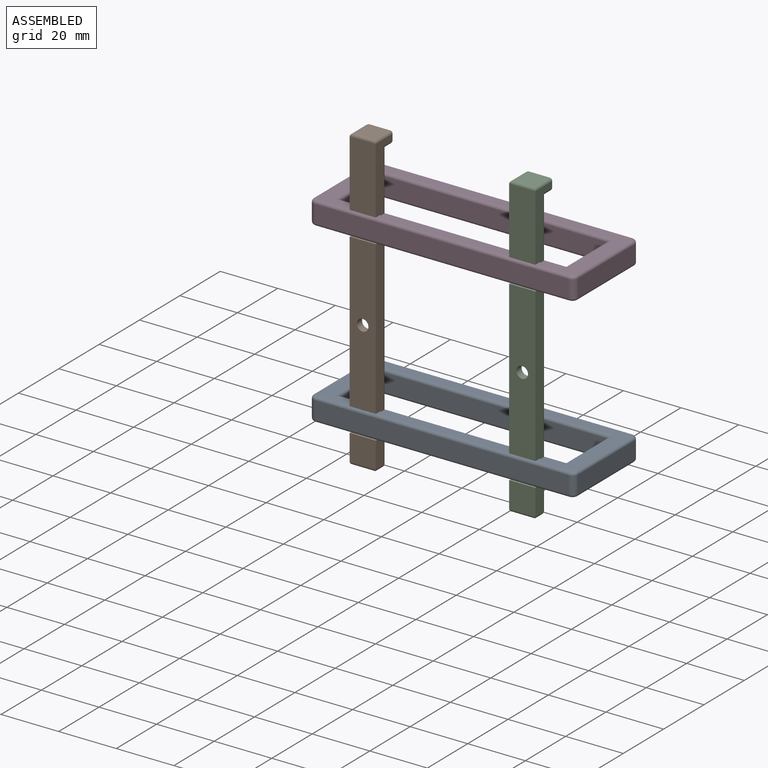
[diagram: assembled view]
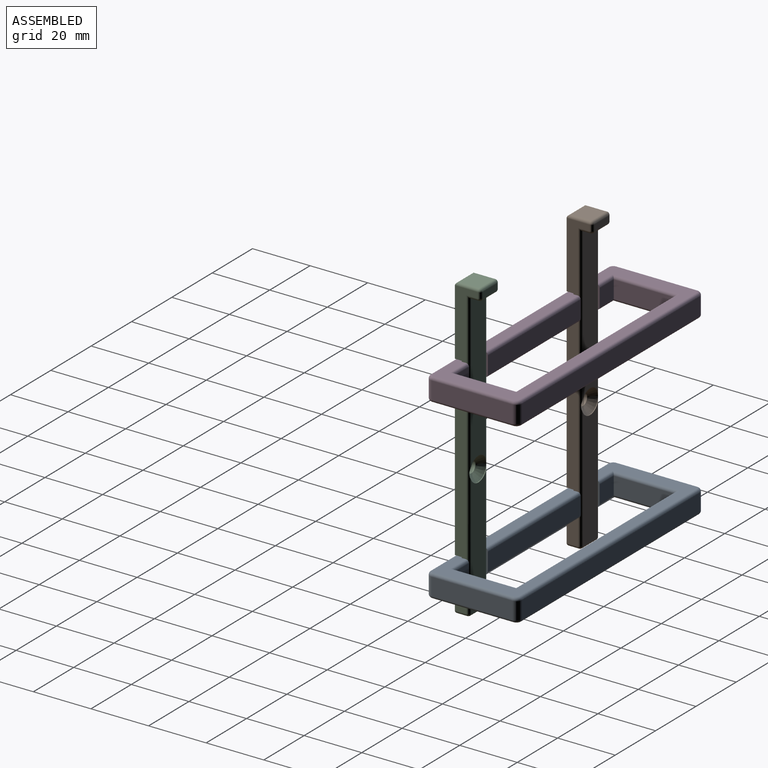
[diagram: assembled view, second angle]
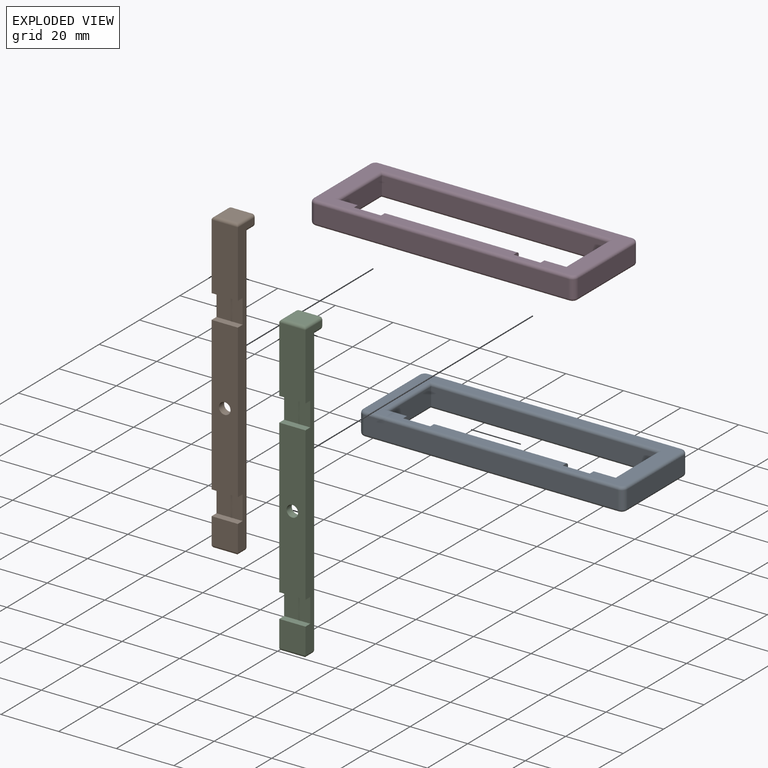
[diagram: exploded view]
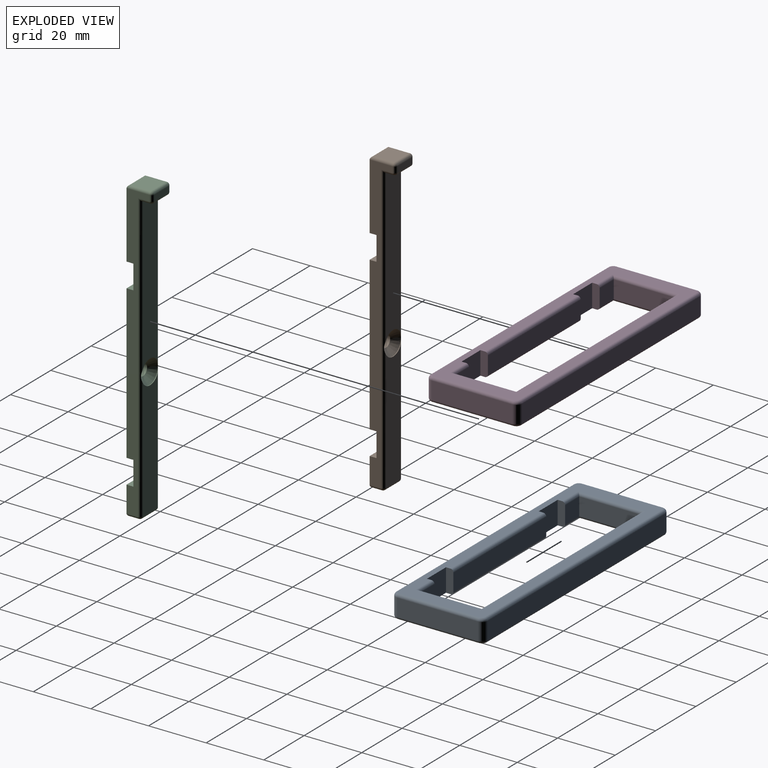
[diagram: exploded view, second angle]
ASSEMBLY  parts=4 mates=3
PART A: 50 faces, bbox 92.3x32.3x8 mm
  f0: plane 28x6mm, normal (1,0,0), area 168mm2, adj f1,f19,f33,f41
  f1: cylinder r=2mm len=6mm, axis (0,0,-1), area 18.8mm2, adj f0,f2,f31,f39
  f2: plane 88x6mm, normal (0,1,0), area 528mm2, adj f1,f3,f30,f38
  f3: cylinder r=2mm len=6mm, axis (0,0,-1), area 18.8mm2, adj f2,f4,f32,f40
  f4: plane 28x6mm, normal (-1,0,0), area 168mm2, adj f3,f5,f34,f42
  f5: cylinder r=2mm len=6mm, axis (0,0,-1), area 18.8mm2, adj f4,f6,f36,f44
  f6: plane 88x6mm, normal (0,-1,0), area 528mm2, adj f5,f19,f37,f45
  f7: plane 21.2x6mm, normal (-1,0,0), area 127.2mm2, adj f8,f18,f47,f49
  f8: plane 7x6mm, normal (0,1,0), area 42mm2, adj f7,f9,f24,f27
  f9: plane 8x2.6mm, normal (-1,0,0), area 20.4mm2, adj f8,f10,f20,f21,f24,f27
  f10: plane 9.4x8mm, normal (0,1,0), area 75.2mm2, adj f9,f11,f20,f21
  f11: plane 8x2.6mm, normal (1,0,0), area 20.4mm2, adj f10,f12,f20,f21,f23,f26
  f12: plane 46x6mm, normal (0,1,0), area 276mm2, adj f11,f13,f23,f26
  f13: plane 8x2.6mm, normal (-1,0,0), area 20.4mm2, adj f12,f14,f20,f21,f23,f26
  f14: plane 9.4x8mm, normal (0,1,0), area 75.2mm2, adj f13,f15,f20,f21
  f15: plane 8x2.6mm, normal (1,0,0), area 20.4mm2, adj f14,f16,f20,f21,f22,f25
  f16: plane 7x6mm, normal (0,1,0), area 42mm2, adj f15,f17,f22,f25
  f17: plane 21.2x6mm, normal (1,0,0), area 127.2mm2, adj f16,f18,f46,f48
  f18: plane 78.8x6mm, normal (0,-1,0), area 472.8mm2, adj f7,f17,f28,f29
  f19: cylinder r=2mm len=6mm, axis (0,0,-1), area 18.8mm2, adj f0,f6,f35,f43
  f20: plane 90x30mm, normal (0,0,1), area 794.5mm2, adj f9,f10,f11,f13,f14,f15,f25,f26
  f21: plane 90x30mm, normal (0,0,-1), area 794.5mm2, adj f9,f10,f11,f13,f14,f15,f22,f23
  f22: cylinder r=1mm len=8mm, axis (-1,0,0), area 11.6mm2, adj f15,f16,f21,f46
  f23: cylinder r=1mm len=46mm, axis (-1,0,0), area 72.3mm2, adj f11,f12,f13,f21
  f24: cylinder r=1mm len=8mm, axis (-1,0,0), area 11.6mm2, adj f8,f9,f21,f47
  f25: cylinder r=1mm len=8mm, axis (1,0,0), area 11.6mm2, adj f15,f16,f20,f48
  f26: cylinder r=1mm len=46mm, axis (1,0,0), area 72.3mm2, adj f11,f12,f13,f20
  f27: cylinder r=1mm len=8mm, axis (1,0,0), area 11.6mm2, adj f8,f9,f20,f49
  f28: cylinder r=1mm len=80.8mm, axis (1,0,0), area 124.9mm2, adj f18,f21,f46,f47
  f29: cylinder r=1mm len=80.8mm, axis (-1,0,0), area 124.9mm2, adj f18,f20,f48,f49
  f30: cylinder r=1mm len=88mm, axis (-1,0,0), area 138.2mm2, adj f2,f21,f31,f32
  f31: torus R=1mm, axis (0,0,1), area 4mm2, adj f1,f21,f30,f33
  f32: torus R=1mm, axis (0,0,1), area 4mm2, adj f3,f21,f30,f34
  f33: cylinder r=1mm len=28mm, axis (0,1,0), area 44mm2, adj f0,f21,f31,f35
  f34: cylinder r=1mm len=28mm, axis (0,-1,0), area 44mm2, adj f4,f21,f32,f36
  f35: torus R=1mm, axis (0,0,1), area 4mm2, adj f19,f21,f33,f37
  f36: torus R=1mm, axis (0,0,1), area 4mm2, adj f5,f21,f34,f37
  f37: cylinder r=1mm len=88mm, axis (1,0,0), area 138.2mm2, adj f6,f21,f35,f36
  f38: cylinder r=1mm len=88mm, axis (1,0,0), area 138.2mm2, adj f2,f20,f39,f40
  f39: torus R=1mm, axis (0,0,1), area 4mm2, adj f1,f20,f38,f41
  f40: torus R=1mm, axis (0,0,1), area 4mm2, adj f3,f20,f38,f42
  f41: cylinder r=1mm len=28mm, axis (0,-1,0), area 44mm2, adj f0,f20,f39,f43
  f42: cylinder r=1mm len=28mm, axis (0,1,0), area 44mm2, adj f4,f20,f40,f44
  f43: torus R=1mm, axis (0,0,1), area 4mm2, adj f19,f20,f41,f45
  f44: torus R=1mm, axis (0,0,1), area 4mm2, adj f5,f20,f42,f45
  f45: cylinder r=1mm len=88mm, axis (-1,0,0), area 138.2mm2, adj f6,f20,f43,f44
  f46: cylinder r=1mm len=23.2mm, axis (0,1,0), area 34.4mm2, adj f17,f21,f22,f28
  f47: cylinder r=1mm len=23.2mm, axis (0,-1,0), area 34.4mm2, adj f7,f21,f24,f28
  f48: cylinder r=1mm len=23.2mm, axis (0,-1,0), area 34.4mm2, adj f17,f20,f25,f29
  f49: cylinder r=1mm len=23.2mm, axis (0,1,0), area 34.4mm2, adj f7,f20,f27,f29
PART B: 42 faces, bbox 104x9.1x9 mm
  f0: plane 41.76x7.1mm, normal (0,0,-1), area 286.7mm2, adj f1,f2,f19,f24
  f1: cylinder r=1mm len=100mm, axis (1,0,0), area 154mm2, adj f0,f7,f18,f19,f22,f23,f31
  f2: cylinder r=1mm len=100mm, axis (-1,0,0), area 154mm2, adj f0,f7,f17,f19,f22,f26,f29
  f3: plane 23x9.1mm, normal (0,0,1), area 209.3mm2, adj f16,f17,f18,f41
  f4: plane 7.1x7mm, normal (-1,0,0), area 49.7mm2, adj f35,f39,f40,f41
  f5: plane 7.1x2mm, normal (0,0,-1), area 14.2mm2, adj f30,f34,f35,f36
  f6: plane 7.1x3mm, normal (1,0,0), area 21.3mm2, adj f7,f29,f30,f31
  f7: plane 52.76x7.1mm, normal (0,0,-1), area 364.8mm2, adj f1,f2,f6,f22
  f8: plane 7.1x3mm, normal (1,0,0), area 21.3mm2, adj f24,f25,f27,f28
  f9: plane 9.1x9mm, normal (0,0,1), area 81.9mm2, adj f10,f17,f18,f27
  f10: plane 9.1x2.4mm, normal (-1,0,0), area 21.8mm2, adj f9,f11,f17,f18
  f11: plane 9.1x8.4mm, normal (0,0,1), area 76.4mm2, adj f10,f12,f17,f18
  f12: plane 9.1x2.4mm, normal (1,0,0), area 21.8mm2, adj f11,f13,f17,f18
  f13: plane 53.2x9.1mm, normal (0,0,1), area 471.6mm2, adj f12,f14,f17,f18,f20
  f14: plane 9.1x2.4mm, normal (-1,0,0), area 21.8mm2, adj f13,f15,f17,f18
  f15: plane 9.1x8.4mm, normal (0,0,1), area 76.4mm2, adj f14,f16,f17,f18
  f16: plane 9.1x2.4mm, normal (1,0,0), area 21.8mm2, adj f3,f15,f17,f18
  f17: plane 102x8mm, normal (0,-1,0), area 375.7mm2, adj f2,f3,f9,f10,f11,f12,f13,f14
  f18: plane 102x8mm, normal (0,1,0), area 375.7mm2, adj f1,f3,f9,f10,f11,f12,f13,f14
  f19: cylinder r=4.2mm len=8.4mm, axis (0,0,-1), area 2.6mm2, adj f0,f1,f2,f21
  f20: cylinder r=2mm len=4mm, axis (0,0,-1), area 32.2mm2, adj f13,f21
  f21: cone r=2mm half-angle=45deg, axis (0,0,-1), area 60.6mm2, adj f19,f20,f22
  f22: cylinder r=4.2mm len=8.4mm, axis (0,0,-1), area 2.6mm2, adj f1,f2,f7,f21
  f23: sphere r=1mm, area 1.6mm2, adj f1,f24,f25
  f24: cylinder r=1mm len=7.1mm, axis (0,1,0), area 11.2mm2, adj f0,f8,f23,f26
  f25: cylinder r=1mm len=4mm, axis (0,0,1), area 5.7mm2, adj f8,f18,f23,f27
  f26: sphere r=1mm, area 1.6mm2, adj f2,f24,f28
  f27: cylinder r=1mm len=9.1mm, axis (0,-1,0), area 13.2mm2, adj f8,f9,f25,f28
  f28: cylinder r=1mm len=4mm, axis (0,0,-1), area 5.7mm2, adj f8,f17,f26,f27
  f29: cylinder r=1mm len=4mm, axis (0,0,-1), area 5.3mm2, adj f2,f6,f17,f32
  f30: cylinder r=1mm len=7.1mm, axis (0,1,0), area 11.2mm2, adj f5,f6,f32,f33
  f31: cylinder r=1mm len=4mm, axis (0,0,1), area 5.3mm2, adj f1,f6,f18,f33
  f32: sphere r=1mm, area 1.6mm2, adj f29,f30,f34
  f33: sphere r=1mm, area 1.6mm2, adj f30,f31,f36
  f34: cylinder r=1mm len=2mm, axis (-1,0,0), area 3.1mm2, adj f5,f17,f32,f37
  f35: cylinder r=1mm len=7.1mm, axis (0,-1,0), area 11.2mm2, adj f4,f5,f37,f38
  f36: cylinder r=1mm len=2mm, axis (1,0,0), area 3.1mm2, adj f5,f18,f33,f38
  f37: sphere r=1mm, area 1.6mm2, adj f34,f35,f39
  f38: sphere r=1mm, area 1.6mm2, adj f35,f36,f40
  f39: cylinder r=1mm len=8mm, axis (0,0,1), area 12mm2, adj f4,f17,f37,f41
  f40: cylinder r=1mm len=8mm, axis (0,0,-1), area 12mm2, adj f4,f18,f38,f41
  f41: cylinder r=1mm len=9.1mm, axis (0,-1,0), area 13.2mm2, adj f3,f4,f39,f40
PART C: same geometry as B
PART D: same geometry as A
PLACE A t=(-0.28,6.31,-54.37)mm
PLACE B rot(axis=(0.58,0.58,-0.58),120deg) t=(-23.43,-46.67,-19.57)mm
PLACE C rot(axis=(0.58,0.58,-0.58),120deg) t=(31.97,-46.67,-19.57)mm
PLACE D t=(-0.28,6.31,7.23)mm
MATE fastened C.f11 <-> A.f10  axis (0,-1,0) through (27.42,-6.89,-50.37)mm
MATE fastened A.f14 <-> B.f11  axis (0,1,0) through (-27.98,-6.89,-50.37)mm
MATE fastened B.f15 <-> D.f14  axis (0,-1,0) through (-27.98,-6.89,11.23)mm
